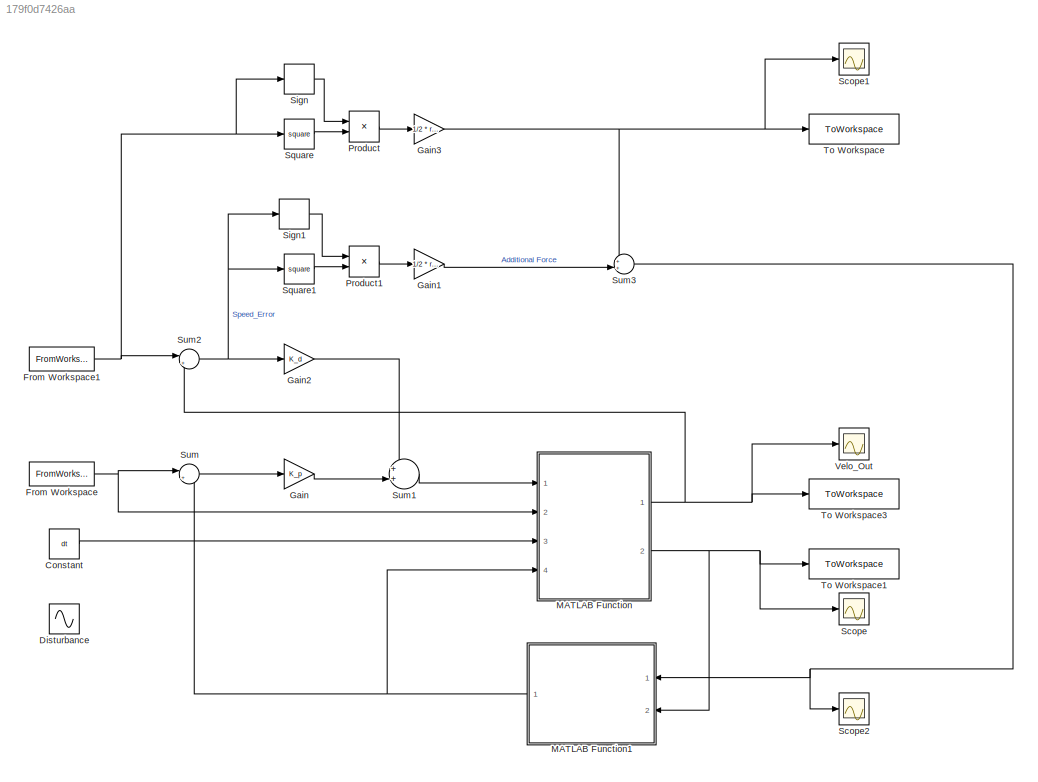
MODEL slx_179f0d7426aa
KIND model
CONFIG AbsTol = auto
CONFIG EnableMultiTasking = off
CONFIG FixedStep = dt
CONFIG MaxStep = auto
CONFIG MinStep = auto
CONFIG RelTol = 1e-3
CONFIG SampleTimeConstraint = Unconstrained
CONFIG SolverName = FixedStepAuto
CONFIG StartTime = 0.0
CONFIG StopTime = end_time
BLOCK [Constant] Constant
  Value = dt
BLOCK [Sin] Disturbance
  Amplitude = 2
  Frequency = 10
  Ports = [0, 1]
  SampleTime = 0
BLOCK [FromWorkspace] From Workspace
  VariableName = position_hist
BLOCK [FromWorkspace] From Workspace1
  VariableName = refer_Velo
BLOCK [Gain] Gain
  Gain = K_p
BLOCK [Gain] Gain1
  Gain = 1/2 * rho_blood * Area * Cd
BLOCK [Gain] Gain2
  Gain = K_d
BLOCK [Gain] Gain3
  Gain = 1/2 * rho_blood * Area * Cd
  NameLocation = top
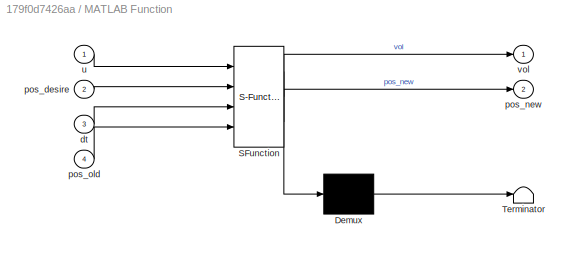
BLOCK [SubSystem] MATLAB Function
  ErrorFcn = Stateflow.Translate.translate
  PermitHierarchicalResolution = ExplicitOnly
  Ports = [4, 2]
  RequestExecContextInheritance = off
  SFBlockType = MATLAB Function
  TreatAsAtomicUnit = on
BLOCK [Demux] MATLAB Function/ Demux 
  Outputs = 1
  Ports = [1, 1]
BLOCK [S-Function] MATLAB Function/ SFunction 
  EnableBusSupport = on
  FunctionName = sf_sfun
  PortCounts = [4 3]
  Ports = [4, 3]
  SFcnIsStateOwnerBlock = off
  SFunctionDeploymentMode = off
  Tag = Stateflow S-Function 2
BLOCK [Terminator] MATLAB Function/ Terminator 
BLOCK [Inport] MATLAB Function/dt
  Port = 3
BLOCK [Inport] MATLAB Function/pos_desire
  Port = 2
BLOCK [Outport] MATLAB Function/pos_new
  Port = 2
BLOCK [Inport] MATLAB Function/pos_old
  Port = 4
BLOCK [Inport] MATLAB Function/u
BLOCK [Outport] MATLAB Function/vol
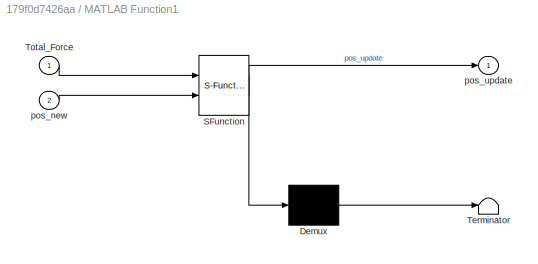
BLOCK [SubSystem] MATLAB Function1
  ErrorFcn = Stateflow.Translate.translate
  PermitHierarchicalResolution = ExplicitOnly
  Ports = [2, 1]
  RequestExecContextInheritance = off
  SFBlockType = MATLAB Function
  TreatAsAtomicUnit = on
BLOCK [Demux] MATLAB Function1/ Demux 
  Outputs = 1
  Ports = [1, 1]
BLOCK [S-Function] MATLAB Function1/ SFunction 
  EnableBusSupport = on
  FunctionName = sf_sfun
  PortCounts = [2 2]
  Ports = [2, 2]
  SFcnIsStateOwnerBlock = off
  SFunctionDeploymentMode = off
  Tag = Stateflow S-Function 1
BLOCK [Terminator] MATLAB Function1/ Terminator 
BLOCK [Inport] MATLAB Function1/Total_Force
BLOCK [Inport] MATLAB Function1/pos_new
  Port = 2
BLOCK [Outport] MATLAB Function1/pos_update
BLOCK [Product] Product
  Ports = [2, 1]
BLOCK [Product] Product1
  Ports = [2, 1]
BLOCK [Scope] Scope
  Floating = off
  NumInputPorts = 1
  Ports = [1]
  ScopeSpecificationString = Simulink.scopes.TimeScopeBlockCfg('CurrentConfiguration', extmgr.ConfigurationSet(extmgr.Configuration('Core','General UI',true),extmgr.Configuration('Core','Source UI',true),extmgr.Configuration('Sources','WiredSimulink',true,'DataLoggingVariableName','ScopeData1'),extmgr.Configuration('Visuals','Time Domain',true,'SerializedDisplays',{struct('MinYLimReal','-0.10712','MaxYLimReal','1.04815','YLab...<+1442ch>
BLOCK [Scope] Scope1
  Floating = off
  NumInputPorts = 1
  Ports = [1]
  ScopeSpecificationString = Simulink.scopes.TimeScopeBlockCfg('CurrentConfiguration', extmgr.ConfigurationSet(extmgr.Configuration('Core','General UI',true),extmgr.Configuration('Core','Source UI',true),extmgr.Configuration('Sources','WiredSimulink',true,'DataLoggingVariableName','ScopeData1'),extmgr.Configuration('Visuals','Time Domain',true,'SerializedDisplays',{struct('MinYLimReal','-0.000047','MaxYLimReal','0.000047','YL...<+1497ch>
BLOCK [Scope] Scope2
  Floating = off
  NumInputPorts = 1
  Ports = [1]
  ScopeSpecificationString = Simulink.scopes.TimeScopeBlockCfg('CurrentConfiguration', extmgr.ConfigurationSet(extmgr.Configuration('Core','General UI',true),extmgr.Configuration('Core','Source UI',true),extmgr.Configuration('Sources','WiredSimulink',true,'DataLoggingVariableName','ScopeData2'),extmgr.Configuration('Visuals','Time Domain',true,'SerializedDisplays',{struct('MinYLimReal','-0.00053','MaxYLimReal','0.00011','YLab...<+1359ch>
BLOCK [Signum] Sign
BLOCK [Signum] Sign1
BLOCK [Math] Square
  Operator = square
  Ports = [1, 1]
BLOCK [Math] Square1
  Operator = square
  Ports = [1, 1]
BLOCK [Sum] Sum
  Inputs = |+-
  Ports = [2, 1]
BLOCK [Sum] Sum1
  Inputs = ++|
  Ports = [2, 1]
BLOCK [Sum] Sum2
  Inputs = |+-
  Ports = [2, 1]
BLOCK [Sum] Sum3
  Inputs = ++|
  Ports = [2, 1]
BLOCK [ToWorkspace] To Workspace
  FixptAsFi = on
  MaxDataPoints = inf
  Ports = [1]
  SampleTime = -1
  SaveFormat = Structure With Time
  VariableName = Force_Refer
BLOCK [ToWorkspace] To Workspace1
  FixptAsFi = on
  MaxDataPoints = inf
  Ports = [1]
  SampleTime = -1
  SaveFormat = Timeseries
  VariableName = real_Posi
BLOCK [ToWorkspace] To Workspace3
  FixptAsFi = on
  MaxDataPoints = inf
  Ports = [1]
  SampleTime = -1
  SaveFormat = Timeseries
  VariableName = real_Velo
BLOCK [Scope] Velo_Out
  Floating = off
  NumInputPorts = 1
  Ports = [1]
  ScopeSpecificationString = Simulink.scopes.TimeScopeBlockCfg('CurrentConfiguration', extmgr.ConfigurationSet(extmgr.Configuration('Core','General UI',true),extmgr.Configuration('Core','Source UI',true),extmgr.Configuration('Sources','WiredSimulink',true,'DataLoggingVariableName','ScopeData5'),extmgr.Configuration('Visuals','Time Domain',true,'SerializedDisplays',{struct('MinYLimReal','-0.56846','MaxYLimReal','1.25641','YLab...<+1431ch>
LINE Constant:1 -> MATLAB Function:3
NET From Workspace1:1 -> Sign:1, Square:1, Sum2:1
NET From Workspace:1 -> MATLAB Function:2, Sum:1
LINE Gain1:1 -> Sum3:2
LINE Gain2:1 -> Sum1:1
NET Gain3:1 -> Scope1:1, Sum3:1, To Workspace:1
LINE Gain:1 -> Sum1:2
NET MATLAB Function1:1 -> MATLAB Function:4, Sum:2
NET MATLAB Function:1 -> Sum2:2, To Workspace3:1, Velo_Out:1
NET MATLAB Function:2 -> MATLAB Function1:2, Scope:1, To Workspace1:1
LINE Product1:1 -> Gain1:1
LINE Product:1 -> Gain3:1
LINE Sign1:1 -> Product1:1
LINE Sign:1 -> Product:1
LINE Square1:1 -> Product1:2
LINE Square:1 -> Product:2
LINE Sum1:1 -> MATLAB Function:1
NET Sum2:1 -> Gain2:1, Sign1:1, Square1:1
NET Sum3:1 -> MATLAB Function1:1, Scope2:1
LINE Sum:1 -> Gain:1
note: NET lines group one-source signal fan-out (src -> all destinations, sorted); 1:1 wires keep LINE
CHART MATLAB Function1 states=1 transitions=1
  STATE_LABEL 'eML_blk_kernel()'
  STATE_LABEL 'SCRIPT:\nfunction pos_update = DER(Total_Force,pos_new)\n%% Time setup\ntotal_Time = 5;\ndt = 0.01;\nN_step = total_Time / dt;\n\n%% Beam parameters \nN = 50; % Number of nodes \nl = 0.5; % beam length\nR = 0.002; % beam outer radius \nr = 0.001; % beam inner radius\nrho_beam = 980; % PDMS density\nE = 1.47e6; % Youngs Modulus\n\ndl = l / (N - 1); % length of each segment \nA = pi*(R^2-r^2); % Beam cross-section ...<+2332ch>'
CHART MATLAB Function states=1 transitions=1
  STATE_LABEL 'eML_blk_kernel()'
  STATE_LABEL 'SCRIPT:\nfunction [vol,pos_new] = Robot_system(u,pos_desire,dt,pos_old)\n\npos_new = pos_desire + u;\n\nvol = (pos_new - pos_old)/dt;\n'
CHART  states=0 transitions=0
CHART  states=0 transitions=0
